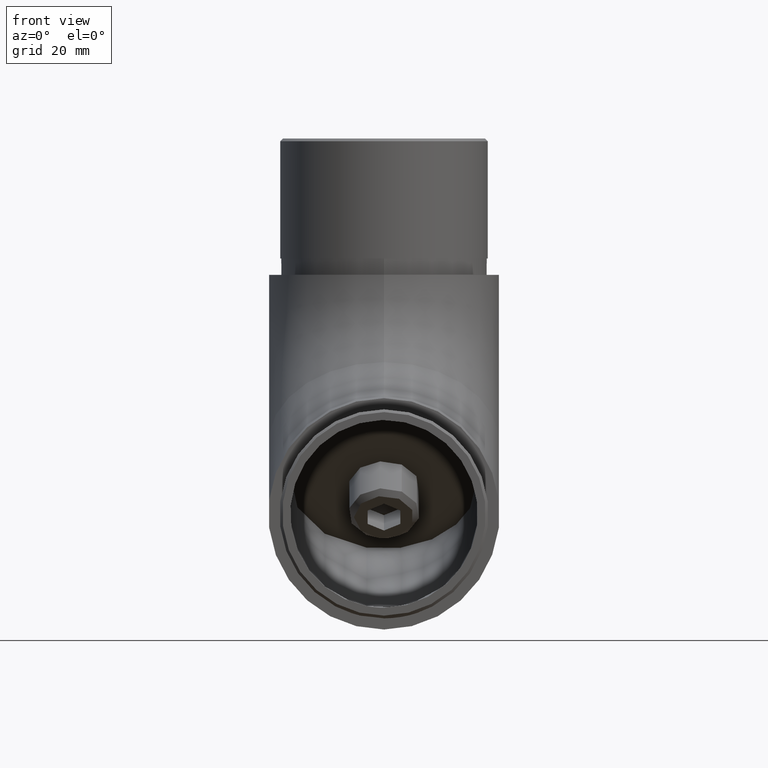
[diagram: clean part render]
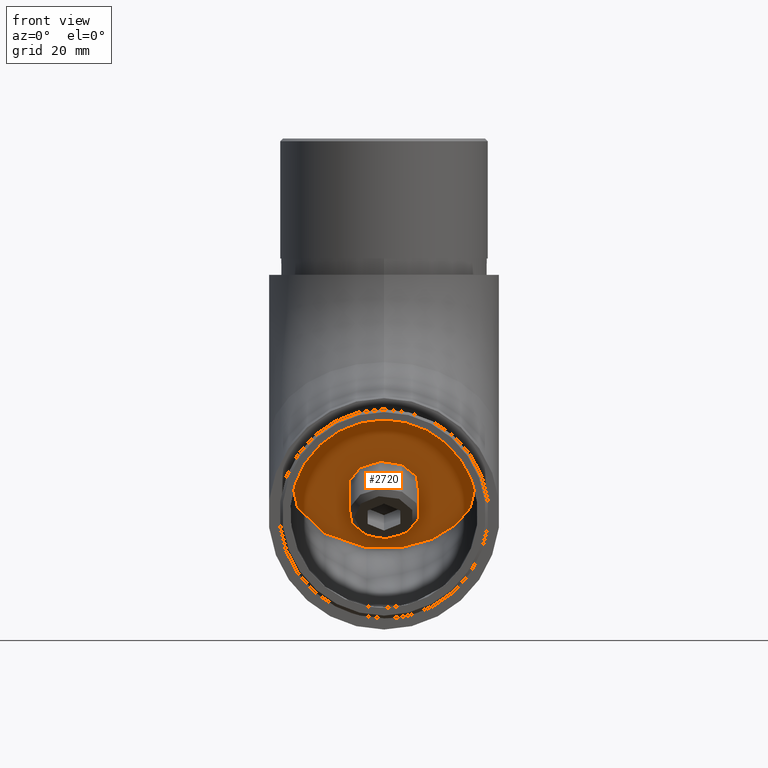
[diagram: same view with one face highlighted and labeled with its STEP entity id]
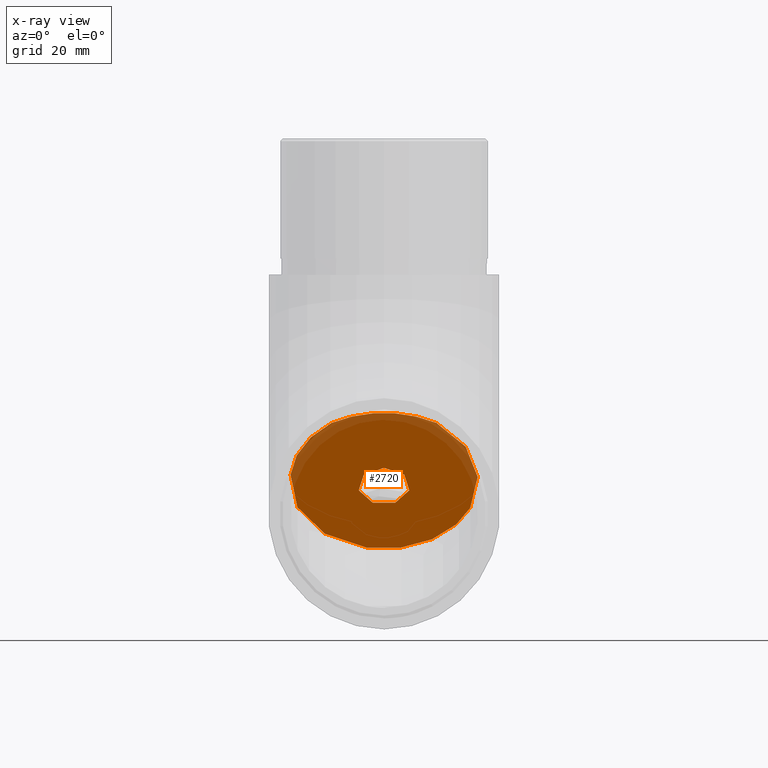
[diagram: x-ray of the same camera — body ghosted, the highlighted face saturated]
A machine part, front view. The second image highlights one B-rep face of the part: STEP entity #2720.
The next image is the same camera in x-ray: the body ghosted, the highlighted face saturated — about 13% of this face is hidden behind the body in this view.
In plain terms, the highlighted planar face has unit normal (0, 0.7071, 0.7071).
Its self-contained STEP definition (entity closure, byte-faithful):
#138 = CARTESIAN_POINT ( 'NONE',  ( 17.15549949767361700, 21.08224237438770000, 7.161408439507952500 ) ) ;
#200 = CARTESIAN_POINT ( 'NONE',  ( 15.84660097624543000, 17.24128148275617900, 11.00236933113951600 ) ) ;
#206 = EDGE_CURVE ( 'NONE', #8273, #1084, #1252, .T. ) ;
#313 = CARTESIAN_POINT ( 'NONE',  ( 16.70749195348185600, 19.13351037409429300, 9.110140439801380600 ) ) ;
#511 = CARTESIAN_POINT ( 'NONE',  ( -16.31287486989137000, 18.18446562286291600, 10.05918519103276800 ) ) ;
#575 = CARTESIAN_POINT ( 'NONE',  ( -12.79048616689505700, 30.55001066511304900, -2.306359851217502800 ) ) ;
#633 = CARTESIAN_POINT ( 'NONE',  ( -16.78261102867713800, 25.02309848289177900, 3.220552331003837300 ) ) ;
#1084 = VERTEX_POINT ( 'NONE', #3948 ) ;
#1100 = DIRECTION ( 'NONE',  ( 0.0000000000000000000, 0.7071067811865513500, 0.7071067811865438000 ) ) ;
#1252 = B_SPLINE_CURVE_WITH_KNOTS ( 'NONE', 3,
 ( #13924, #5887, #16670, #13985, #16559, #9996, #15270, #1957, #7248, #511, #16616, #12522, #12584, #8638, #11288, #13871, #4538, #5942, #8533, #8591, #633, #3250, #9877, #12700, #15321, #11341, #5831, #3309, #4647, #1846, #575, #4476, #11225, #3190, #9935, #1900, #12641, #15212, #4594, #7185, #7305, #13406, #12459, #12353, #16843, #6297, #6636, #14048, #8342, #1702, #6987, #8164, #4172, #14851, #4225, #5515, #10921, #12215, #16186, #5457, #13555, #5577, #2822, #11098, #1523, #2877, #14903, #8217, #13671, #9641, #6811, #138, #6872, #313, #16241, #200, #12338, #13618, #13736, #9579, #16361, #9688, #12277, #1470, #2989, #14961 ),
 .UNSPECIFIED., .F., .F.,
 ( 4, 2, 2, 2, 2, 2, 2, 2, 2, 2, 2, 2, 2, 2, 2, 2, 2, 2, 2, 2, 2, 2, 2, 2, 2, 2, 2, 2, 2, 2, 2, 2, 2, 2, 2, 2, 2, 2, 2, 2, 2, 2, 4 ),
 ( 0.005968446983085923100, 0.008753766491532658000, 0.01153908599997939200, 0.01432440550842612300, 0.01710972501687285700, 0.01850238477109622500, 0.01989504452531959100, 0.02268036403376632500, 0.02407302378798969000, 0.02546568354221305200, 0.02825100305065977900, 0.02964366280488314400, 0.03103632255910651300, 0.03382164206755324700, 0.03521430182177662200, 0.03660696157599998400, 0.03939228108444671500, 0.04217760059289345200, 0.04496292010134019000, 0.04774823960978691300, 0.05053355911823364400, 0.05331887862668038100, 0.05471153838090374300, 0.05610419813512711900, 0.05888951764357384200, 0.06028217739779719700, 0.06167483715202055900, 0.06446015666046729700, 0.06585281641469065100, 0.06724547616891402000, 0.07003079567736075800, 0.07142345543158411200, 0.07281611518580748100, 0.07560143469425423300, 0.07699409444847758700, 0.07838675420270095600, 0.08117207371114769400, 0.08395739321959443100, 0.08674271272804116900, 0.08813537248226453700, 0.08952803223648789200, 0.09231335174493464400, 0.09509867125338135300 ),
 .UNSPECIFIED. ) ;
#1470 = CARTESIAN_POINT ( 'NONE',  ( 11.07498161427826700, 12.42068007419579200, 15.82297073969994500 ) ) ;
#1523 = CARTESIAN_POINT ( 'NONE',  ( 16.40630339729255700, 25.97455428417998000, 2.269096529715620000 ) ) ;
#1702 = CARTESIAN_POINT ( 'NONE',  ( 8.466183208802233300, 33.05086012888106200, -4.807209314985542800 ) ) ;
#1846 = CARTESIAN_POINT ( 'NONE',  ( -13.09778540814360100, 30.29666375595784100, -2.053012942062280500 ) ) ;
#1900 = CARTESIAN_POINT ( 'NONE',  ( -7.237086643089766900, 33.52019775060922100, -5.276546936713701900 ) ) ;
#1957 = CARTESIAN_POINT ( 'NONE',  ( -15.47727198057703100, 16.64207167333834300, 11.60157914055735900 ) ) ;
#2022 = DIRECTION ( 'NONE',  ( 0.0000000000000000000, 0.7071067811865513500, 0.7071067811865438000 ) ) ;
#2720 = ADVANCED_FACE ( 'NONE', ( #15572, #3840 ), #6317, .F. ) ;
#2822 = CARTESIAN_POINT ( 'NONE',  ( 15.94134689029213100, 26.91020160934810000, 1.333449204547488800 ) ) ;
#2877 = CARTESIAN_POINT ( 'NONE',  ( 16.78222003164468400, 25.02438267048478000, 3.219268143410833000 ) ) ;
#2989 = CARTESIAN_POINT ( 'NONE',  ( 10.36724770217554200, 11.99218219617755700, 16.25146861771819200 ) ) ;
#3190 = CARTESIAN_POINT ( 'NONE',  ( -9.675817323952326600, 32.52591745466754200, -4.282266640772015800 ) ) ;
#3250 = CARTESIAN_POINT ( 'NONE',  ( -16.40698546649869300, 25.97297770900129200, 2.270673104894314500 ) ) ;
#3309 = CARTESIAN_POINT ( 'NONE',  ( -13.95061119019579000, 29.51201158596058600, -1.268360772065028300 ) ) ;
#3371 = DIRECTION ( 'NONE',  ( -0.0000000000000000000, -0.7071067811865513500, -0.7071067811865438000 ) ) ;
#3785 = EDGE_LOOP ( 'NONE', ( #13757 ) ) ;
#3840 = FACE_OUTER_BOUND ( 'NONE', #13024, .T. ) ;
#3853 = DIRECTION ( 'NONE',  ( 0.0000000000000000000, -0.7071067811865438000, 0.7071067811865513500 ) ) ;
#3948 = CARTESIAN_POINT ( 'NONE',  ( 9.604853806844012400, 11.60114867583279400, 16.64250213806295900 ) ) ;
#4172 = CARTESIAN_POINT ( 'NONE',  ( 10.03436171517967800, 32.32929462550952600, -4.085643811614003700 ) ) ;
#4225 = CARTESIAN_POINT ( 'NONE',  ( 11.82504333791485800, 31.28267140517224800, -3.039020591276707400 ) ) ;
#4476 = CARTESIAN_POINT ( 'NONE',  ( -11.83115341106629100, 31.27852671316939800, -3.034875899273864300 ) ) ;
#4538 = CARTESIAN_POINT ( 'NONE',  ( -17.20374698143663700, 22.40529928860536300, 5.838351525290275600 ) ) ;
#4594 = CARTESIAN_POINT ( 'NONE',  ( -3.723963106118676400, 34.37385541715485000, -6.130204603259345600 ) ) ;
#4647 = CARTESIAN_POINT ( 'NONE',  ( -13.67707469940761200, 29.77822775302081800, -1.534576939125256600 ) ) ;
#4714 = DIRECTION ( 'NONE',  ( 0.0000000000000000000, -0.7071067811865436900, 0.7071067811865514600 ) ) ;
#5457 = CARTESIAN_POINT ( 'NONE',  ( 14.72124686383565800, 28.69628213612924800, -0.4526313222336804700 ) ) ;
#5515 = CARTESIAN_POINT ( 'NONE',  ( 12.78457057737569100, 30.55474714330110300, -2.311096329405556600 ) ) ;
#5520 = CIRCLE ( 'NONE', #7845, 19.00000000000000000 ) ;
#5577 = CARTESIAN_POINT ( 'NONE',  ( 15.76144574178811600, 27.21917634289977200, 1.024474470995814700 ) ) ;
#5701 = ORIENTED_EDGE ( 'NONE', *, *, #10271, .F. ) ;
#5831 = CARTESIAN_POINT ( 'NONE',  ( -14.72404200477297900, 28.69286638215998400, -0.4492155682644079500 ) ) ;
#5887 = CARTESIAN_POINT ( 'NONE',  ( -10.36601864646322600, 11.99155181077518300, 16.25209900312057000 ) ) ;
#5942 = CARTESIAN_POINT ( 'NONE',  ( -17.16480091301862000, 23.06943787690706700, 5.174212936988571000 ) ) ;
#6297 = CARTESIAN_POINT ( 'NONE',  ( 4.608290716898547000, 34.20081424546082600, -5.957163431565322600 ) ) ;
#6317 = PLANE ( 'NONE',  #14616 ) ;
#6636 = CARTESIAN_POINT ( 'NONE',  ( 5.054307471047176000, 34.10691337561822700, -5.863262561722710800 ) ) ;
#6811 = CARTESIAN_POINT ( 'NONE',  ( 17.20495017560741100, 22.06917283599722500, 6.174477977898416900 ) ) ;
#6855 = CARTESIAN_POINT ( 'NONE',  ( -9.604853806829380500, 11.60114867582673200, 16.64250213806902000 ) ) ;
#6872 = CARTESIAN_POINT ( 'NONE',  ( 17.05252635106267400, 20.42932781924464800, 7.814322994651016400 ) ) ;
#6971 = AXIS2_PLACEMENT_3D ( 'NONE', #16911, #3371, #4714 ) ;
#6987 = CARTESIAN_POINT ( 'NONE',  ( 8.871716426912410500, 32.88050049011115300, -4.636849676215634400 ) ) ;
#7185 = CARTESIAN_POINT ( 'NONE',  ( -1.867086865342749900, 34.59376788132294700, -6.350117067427440500 ) ) ;
#7248 = CARTESIAN_POINT ( 'NONE',  ( -15.84923236961821600, 17.24539117007379800, 10.99825964382190200 ) ) ;
#7305 = CARTESIAN_POINT ( 'NONE',  ( -0.9352704237646982700, 34.64798853077051900, -6.404337716875003700 ) ) ;
#7845 = AXIS2_PLACEMENT_3D ( 'NONE', #11404, #2022, #14266 ) ;
#8164 = CARTESIAN_POINT ( 'NONE',  ( 9.654888105434018500, 32.52005523322207400, -4.276404419326538300 ) ) ;
#8217 = CARTESIAN_POINT ( 'NONE',  ( 17.12794401120682900, 23.39495827798408500, 4.848692535911537100 ) ) ;
#8273 = VERTEX_POINT ( 'NONE', #6855 ) ;
#8342 = CARTESIAN_POINT ( 'NONE',  ( 7.226130781620668100, 33.52374795663379100, -5.280097142738265200 ) ) ;
#8533 = CARTESIAN_POINT ( 'NONE',  ( -17.12738104917456300, 23.39888599964865200, 4.844764814246977000 ) ) ;
#8591 = CARTESIAN_POINT ( 'NONE',  ( -16.96246202885130600, 24.37953934990633100, 3.864111463989280600 ) ) ;
#8638 = CARTESIAN_POINT ( 'NONE',  ( -17.05275837444750700, 20.43142302024538300, 7.812227793650278000 ) ) ;
#8727 = VERTEX_POINT ( 'NONE', #11760 ) ;
#9579 = CARTESIAN_POINT ( 'NONE',  ( 14.09508872033490900, 14.92003313057717900, 13.32361768331853600 ) ) ;
#9641 = CARTESIAN_POINT ( 'NONE',  ( 17.20385697089703200, 22.39941484507278300, 5.844235968822848000 ) ) ;
#9688 = CARTESIAN_POINT ( 'NONE',  ( 12.99589056478764900, 13.84482668313713600, 14.39882413075858900 ) ) ;
#9877 = CARTESIAN_POINT ( 'NONE',  ( -16.26405945866727300, 26.28701644224374000, 1.956634371651856800 ) ) ;
#9935 = CARTESIAN_POINT ( 'NONE',  ( -8.893693358396175700, 32.88719391381719200, -4.643543099921668500 ) ) ;
#9996 = CARTESIAN_POINT ( 'NONE',  ( -14.11700245549783800, 14.92047629222107800, 13.32317452167464100 ) ) ;
#10271 = EDGE_CURVE ( 'NONE', #8273, #1084, #5520, .T. ) ;
#10921 = CARTESIAN_POINT ( 'NONE',  ( 13.09222714052102900, 30.30138262157742400, -2.057731807681866700 ) ) ;
#11065 = ORIENTED_EDGE ( 'NONE', *, *, #206, .T. ) ;
#11098 = CARTESIAN_POINT ( 'NONE',  ( 16.26337957724179300, 26.28840424167271200, 1.955246572222887600 ) ) ;
#11225 = CARTESIAN_POINT ( 'NONE',  ( -11.14381269617385700, 31.72187593433777800, -3.478225120442245600 ) ) ;
#11288 = CARTESIAN_POINT ( 'NONE',  ( -17.15579302296883000, 21.08381217660631900, 7.159838637289334800 ) ) ;
#11341 = CARTESIAN_POINT ( 'NONE',  ( -15.17704230949351400, 28.11956430369734200, 0.1240865101982377400 ) ) ;
#11404 = CARTESIAN_POINT ( 'NONE',  ( 0.0000000000000000000, 23.19310242291855300, 5.050548390977075600 ) ) ;
#11760 = CARTESIAN_POINT ( 'NONE',  ( 0.0000000000000000000, 19.83434521228246800, 8.409305601613191100 ) ) ;
#11775 = CARTESIAN_POINT ( 'NONE',  ( 0.0000000000000000000, 23.19310242291855300, 5.050548390977075600 ) ) ;
#12215 = CARTESIAN_POINT ( 'NONE',  ( 13.67237869822427500, 29.78268148585254600, -1.539030671956987700 ) ) ;
#12277 = CARTESIAN_POINT ( 'NONE',  ( 12.38933008404769300, 13.34698378531236400, 14.89666702858337100 ) ) ;
#12338 = CARTESIAN_POINT ( 'NONE',  ( 15.47546383102029200, 16.63925306004208300, 11.60439775385362500 ) ) ;
#12353 = CARTESIAN_POINT ( 'NONE',  ( 3.242155599205813800, 34.43125502423738700, -6.187604210341866000 ) ) ;
#12459 = CARTESIAN_POINT ( 'NONE',  ( 1.850997750611963000, 34.59497734243913700, -6.351326528543618900 ) ) ;
#12522 = CARTESIAN_POINT ( 'NONE',  ( -16.69241391533718800, 19.14201600761878900, 9.101634806276887700 ) ) ;
#12584 = CARTESIAN_POINT ( 'NONE',  ( -16.79540743004029600, 19.46308172409237600, 8.780569089803300600 ) ) ;
#12641 = CARTESIAN_POINT ( 'NONE',  ( -6.383340186710639400, 33.78421877081638100, -5.540567956920865500 ) ) ;
#12700 = CARTESIAN_POINT ( 'NONE',  ( -15.94161945375642900, 26.90975015758767300, 1.333900656307917200 ) ) ;
#13024 = EDGE_LOOP ( 'NONE', ( #11065, #5701 ) ) ;
#13406 = CARTESIAN_POINT ( 'NONE',  ( 0.9227576792282579100, 34.64847438952184400, -6.404823575626345200 ) ) ;
#13555 = CARTESIAN_POINT ( 'NONE',  ( 15.17526344228510000, 28.12212043383262700, 0.1215303800629514600 ) ) ;
#13618 = CARTESIAN_POINT ( 'NONE',  ( 14.82492678950520200, 15.76674150743541400, 12.47690930646030700 ) ) ;
#13671 = CARTESIAN_POINT ( 'NONE',  ( 17.16543793793008300, 23.06250691439844400, 5.181143899497190100 ) ) ;
#13736 = CARTESIAN_POINT ( 'NONE',  ( 14.59237131515551800, 15.48101601703504200, 12.76263479686067200 ) ) ;
#13757 = ORIENTED_EDGE ( 'NONE', *, *, #15038, .F. ) ;
#13871 = CARTESIAN_POINT ( 'NONE',  ( -17.20502821681934000, 22.07288921280643700, 6.170761601089199500 ) ) ;
#13924 = CARTESIAN_POINT ( 'NONE',  ( -9.604853806829380500, 11.60114867582673200, 16.64250213806902000 ) ) ;
#13985 = CARTESIAN_POINT ( 'NONE',  ( -12.39134273826208100, 13.34844599746490700, 14.89520481643083000 ) ) ;
#14048 = CARTESIAN_POINT ( 'NONE',  ( 6.372894310072847900, 33.78723932678296600, -5.543588512887437100 ) ) ;
#14266 = DIRECTION ( 'NONE',  ( 0.0000000000000000000, -0.7071067811865436900, 0.7071067811865513500 ) ) ;
#14616 = AXIS2_PLACEMENT_3D ( 'NONE', #11775, #1100, #3853 ) ;
#14851 = CARTESIAN_POINT ( 'NONE',  ( 11.13714444333607800, 31.72600665524862900, -3.482355841353090800 ) ) ;
#14903 = CARTESIAN_POINT ( 'NONE',  ( 16.96266442915293700, 24.37948925486211100, 3.864161559033504600 ) ) ;
#14961 = CARTESIAN_POINT ( 'NONE',  ( 9.604853806844012400, 11.60114867583279400, 16.64250213806295900 ) ) ;
#15038 = EDGE_CURVE ( 'NONE', #8727, #8727, #16043, .T. ) ;
#15212 = CARTESIAN_POINT ( 'NONE',  ( -4.626776884943542000, 34.21104444142437700, -5.967393627528871000 ) ) ;
#15270 = CARTESIAN_POINT ( 'NONE',  ( -14.61114276892418400, 15.47961938842233400, 12.76403142547338000 ) ) ;
#15321 = CARTESIAN_POINT ( 'NONE',  ( -15.76184457208813100, 27.21846968639184900, 1.025181127503740800 ) ) ;
#15572 = FACE_BOUND ( 'NONE', #3785, .T. ) ;
#16043 = CIRCLE ( 'NONE', #6971, 4.749999999999999100 ) ;
#16186 = CARTESIAN_POINT ( 'NONE',  ( 13.94637971731205200, 29.51626297149912800, -1.272612157603560700 ) ) ;
#16241 = CARTESIAN_POINT ( 'NONE',  ( 16.46256098085319400, 18.48643880082010300, 9.757212013075570000 ) ) ;
#16361 = CARTESIAN_POINT ( 'NONE',  ( 13.82935329925290400, 14.64394106807423900, 13.59970974582148400 ) ) ;
#16559 = CARTESIAN_POINT ( 'NONE',  ( -13.00052721458170700, 13.84854122211374900, 14.39510959178198000 ) ) ;
#16616 = CARTESIAN_POINT ( 'NONE',  ( -16.45149927402821900, 18.50336460863803000, 9.740286205257653800 ) ) ;
#16670 = CARTESIAN_POINT ( 'NONE',  ( -11.07418380803348300, 12.42007408186755100, 15.82357673202820100 ) ) ;
#16843 = CARTESIAN_POINT ( 'NONE',  ( 3.703070215755902800, 34.36288931375506900, -6.119238499859562800 ) ) ;
#16911 = CARTESIAN_POINT ( 'NONE',  ( 0.0000000000000000000, 23.19310242291855000, 5.050548390977072100 ) ) ;